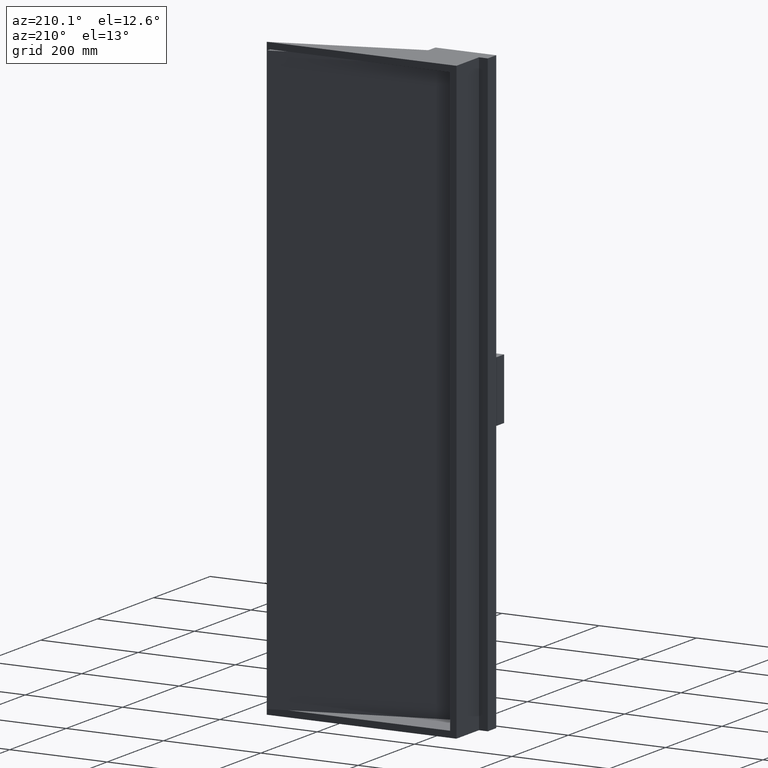
[diagram: clean part render]
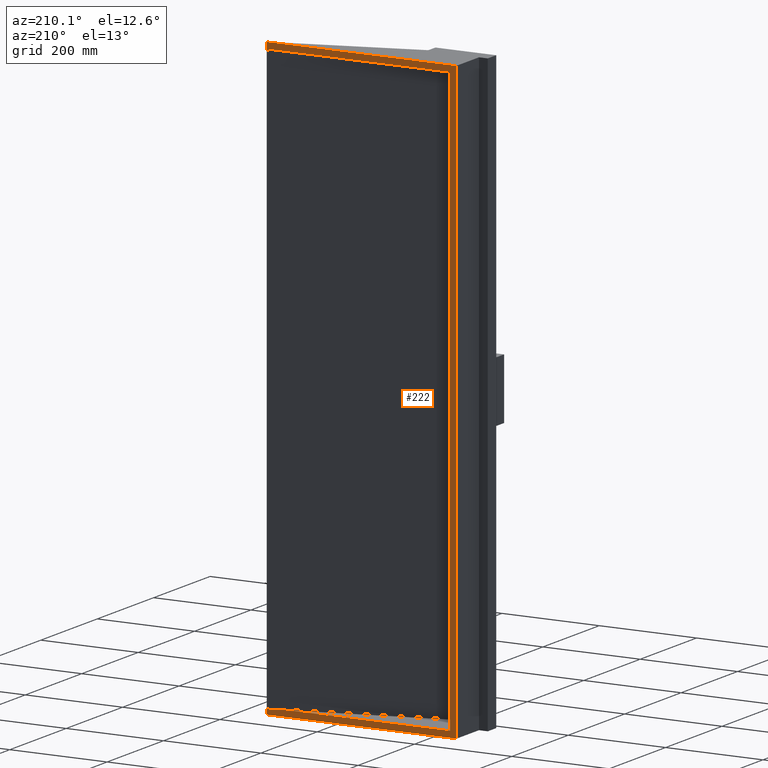
[diagram: same view with one face highlighted and labeled with its STEP entity id]
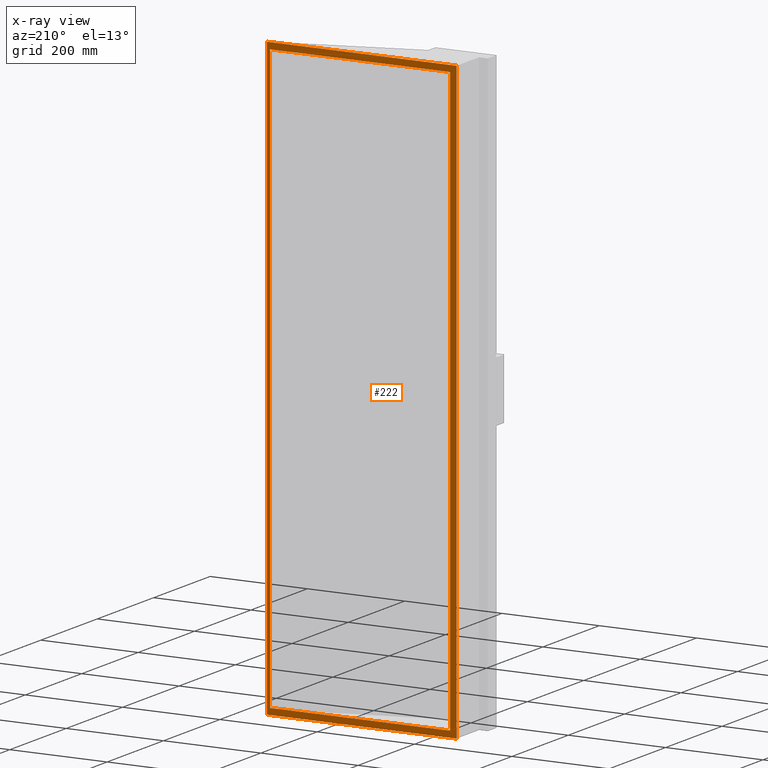
[diagram: x-ray of the same camera — body ghosted, the highlighted face saturated]
A machine part, auxiliary view. The second image highlights one B-rep face of the part: STEP entity #222.
The next image is the same camera in x-ray: the body ghosted, the highlighted face saturated — about 0% of this face is hidden behind the body in this view.
In plain terms, the highlighted planar face has unit normal (0, -1, 0).
Its self-contained STEP definition (entity closure, byte-faithful):
#20 = VERTEX_POINT ( 'NONE', #2914 ) ;
#62 = DIRECTION ( 'NONE',  ( -1.000000000000000000, -0.0000000000000000000, -0.0000000000000000000 ) ) ;
#82 = CARTESIAN_POINT ( 'NONE',  ( -73.11638246079654400, 0.0000000000000000000, 600.0000000000000000 ) ) ;
#85 = LINE ( 'NONE', #2867, #197 ) ;
#105 = EDGE_LOOP ( 'NONE', ( #2148, #2339, #1957, #2871, #2590, #1307 ) ) ;
#164 = CARTESIAN_POINT ( 'NONE',  ( -73.11638246079654400, 0.0000000000000000000, 613.0000000000000000 ) ) ;
#181 = VERTEX_POINT ( 'NONE', #1754 ) ;
#197 = VECTOR ( 'NONE', #1479, 1000.000000000000000 ) ;
#200 = VECTOR ( 'NONE', #2546, 1000.000000000000000 ) ;
#206 = LINE ( 'NONE', #2921, #200 ) ;
#222 = ADVANCED_FACE ( 'NONE', ( #2643, #2373 ), #1391, .F. ) ;
#273 = VERTEX_POINT ( 'NONE', #2050 ) ;
#365 = VECTOR ( 'NONE', #2834, 1000.000000000000000 ) ;
#368 = LINE ( 'NONE', #1060, #365 ) ;
#431 = VECTOR ( 'NONE', #944, 1000.000000000000000 ) ;
#523 = LINE ( 'NONE', #942, #431 ) ;
#572 = EDGE_CURVE ( 'NONE', #273, #2479, #854, .T. ) ;
#574 = VECTOR ( 'NONE', #62, 1000.000000000000000 ) ;
#596 = EDGE_CURVE ( 'NONE', #2620, #1710, #809, .T. ) ;
#679 = EDGE_CURVE ( 'NONE', #1793, #2620, #368, .T. ) ;
#701 = EDGE_CURVE ( 'NONE', #2573, #2006, #523, .T. ) ;
#725 = VECTOR ( 'NONE', #2037, 1000.000000000000000 ) ;
#809 = LINE ( 'NONE', #164, #725 ) ;
#849 = VECTOR ( 'NONE', #1585, 1000.000000000000000 ) ;
#854 = LINE ( 'NONE', #2569, #849 ) ;
#891 = EDGE_CURVE ( 'NONE', #20, #181, #2104, .T. ) ;
#942 = CARTESIAN_POINT ( 'NONE',  ( -86.11638246079655800, 0.0000000000000000000, 613.0000000000000000 ) ) ;
#944 = DIRECTION ( 'NONE',  ( -0.0000000000000000000, -0.0000000000000000000, -1.000000000000000000 ) ) ;
#1000 = CARTESIAN_POINT ( 'NONE',  ( -86.11638246079655800, 0.0000000000000000000, 613.0000000000000000 ) ) ;
#1021 = VECTOR ( 'NONE', #1876, 1000.000000000000000 ) ;
#1033 = CARTESIAN_POINT ( 'NONE',  ( -86.11638246079655800, 0.0000000000000000000, -613.0000000000000000 ) ) ;
#1060 = CARTESIAN_POINT ( 'NONE',  ( -86.11638246079655800, 0.0000000000000000000, 600.0000000000000000 ) ) ;
#1140 = VERTEX_POINT ( 'NONE', #2913 ) ;
#1145 = LINE ( 'NONE', #1879, #1021 ) ;
#1301 = CARTESIAN_POINT ( 'NONE',  ( -86.11638246079655800, 0.0000000000000000000, 613.0000000000000000 ) ) ;
#1307 = ORIENTED_EDGE ( 'NONE', *, *, #1728, .T. ) ;
#1365 = DIRECTION ( 'NONE',  ( 0.0000000000000000000, -1.000000000000000000, 0.0000000000000000000 ) ) ;
#1391 = PLANE ( 'NONE',  #1663 ) ;
#1470 = EDGE_CURVE ( 'NONE', #1140, #2479, #1725, .T. ) ;
#1479 = DIRECTION ( 'NONE',  ( -1.000000000000000000, -0.0000000000000000000, -0.0000000000000000000 ) ) ;
#1557 = EDGE_CURVE ( 'NONE', #181, #2006, #1145, .T. ) ;
#1585 = DIRECTION ( 'NONE',  ( -0.0000000000000000000, -0.0000000000000000000, -1.000000000000000000 ) ) ;
#1654 = VECTOR ( 'NONE', #2137, 1000.000000000000000 ) ;
#1663 = AXIS2_PLACEMENT_3D ( 'NONE', #1301, #1365, #2878 ) ;
#1710 = VERTEX_POINT ( 'NONE', #2166 ) ;
#1725 = LINE ( 'NONE', #2098, #1654 ) ;
#1728 = EDGE_CURVE ( 'NONE', #1710, #1140, #206, .T. ) ;
#1754 = CARTESIAN_POINT ( 'NONE',  ( 303.8836175392034400, 0.0000000000000000000, -613.0000000000000000 ) ) ;
#1786 = EDGE_CURVE ( 'NONE', #20, #2573, #85, .T. ) ;
#1793 = VERTEX_POINT ( 'NONE', #2842 ) ;
#1876 = DIRECTION ( 'NONE',  ( -1.000000000000000000, -0.0000000000000000000, -0.0000000000000000000 ) ) ;
#1879 = CARTESIAN_POINT ( 'NONE',  ( -86.11638246079655800, 0.0000000000000000000, -613.0000000000000000 ) ) ;
#1945 = CARTESIAN_POINT ( 'NONE',  ( -73.11638246079654400, 0.0000000000000000000, 600.0000000000000000 ) ) ;
#1957 = ORIENTED_EDGE ( 'NONE', *, *, #1984, .T. ) ;
#1965 = EDGE_LOOP ( 'NONE', ( #2270, #2410, #2191, #2519 ) ) ;
#1984 = EDGE_CURVE ( 'NONE', #273, #1793, #2221, .T. ) ;
#2006 = VERTEX_POINT ( 'NONE', #1033 ) ;
#2037 = DIRECTION ( 'NONE',  ( 0.0000000000000000000, 0.0000000000000000000, -1.000000000000000000 ) ) ;
#2050 = CARTESIAN_POINT ( 'NONE',  ( 296.8836175392034400, 0.0000000000000000000, 600.0000000000000000 ) ) ;
#2098 = CARTESIAN_POINT ( 'NONE',  ( 303.8836175392034400, 0.0000000000000000000, -600.0000000000000000 ) ) ;
#2101 = VECTOR ( 'NONE', #2788, 1000.000000000000000 ) ;
#2104 = LINE ( 'NONE', #2768, #2101 ) ;
#2137 = DIRECTION ( 'NONE',  ( 1.000000000000000000, -0.0000000000000000000, -0.0000000000000000000 ) ) ;
#2148 = ORIENTED_EDGE ( 'NONE', *, *, #1470, .T. ) ;
#2166 = CARTESIAN_POINT ( 'NONE',  ( -73.11638246079654400, 0.0000000000000000000, -600.0000000000000000 ) ) ;
#2191 = ORIENTED_EDGE ( 'NONE', *, *, #1786, .F. ) ;
#2221 = LINE ( 'NONE', #82, #574 ) ;
#2270 = ORIENTED_EDGE ( 'NONE', *, *, #1557, .T. ) ;
#2339 = ORIENTED_EDGE ( 'NONE', *, *, #572, .F. ) ;
#2373 = FACE_OUTER_BOUND ( 'NONE', #1965, .T. ) ;
#2410 = ORIENTED_EDGE ( 'NONE', *, *, #701, .F. ) ;
#2479 = VERTEX_POINT ( 'NONE', #2833 ) ;
#2519 = ORIENTED_EDGE ( 'NONE', *, *, #891, .T. ) ;
#2546 = DIRECTION ( 'NONE',  ( 1.000000000000000000, 0.0000000000000000000, 0.0000000000000000000 ) ) ;
#2569 = CARTESIAN_POINT ( 'NONE',  ( 296.8836175392034400, 0.0000000000000000000, 613.0000000000000000 ) ) ;
#2573 = VERTEX_POINT ( 'NONE', #1000 ) ;
#2590 = ORIENTED_EDGE ( 'NONE', *, *, #596, .T. ) ;
#2620 = VERTEX_POINT ( 'NONE', #1945 ) ;
#2643 = FACE_BOUND ( 'NONE', #105, .T. ) ;
#2768 = CARTESIAN_POINT ( 'NONE',  ( 303.8836175392034400, 0.0000000000000000000, 613.0000000000000000 ) ) ;
#2788 = DIRECTION ( 'NONE',  ( -0.0000000000000000000, -0.0000000000000000000, -1.000000000000000000 ) ) ;
#2833 = CARTESIAN_POINT ( 'NONE',  ( 296.8836175392034400, 0.0000000000000000000, -600.0000000000000000 ) ) ;
#2834 = DIRECTION ( 'NONE',  ( -1.000000000000000000, 0.0000000000000000000, 0.0000000000000000000 ) ) ;
#2842 = CARTESIAN_POINT ( 'NONE',  ( 260.3836175392035000, 0.0000000000000000000, 600.0000000000000000 ) ) ;
#2867 = CARTESIAN_POINT ( 'NONE',  ( 296.8836175392034400, 0.0000000000000000000, 613.0000000000000000 ) ) ;
#2871 = ORIENTED_EDGE ( 'NONE', *, *, #679, .T. ) ;
#2878 = DIRECTION ( 'NONE',  ( 0.0000000000000000000, -0.0000000000000000000, -1.000000000000000000 ) ) ;
#2913 = CARTESIAN_POINT ( 'NONE',  ( 260.3836175392035000, 0.0000000000000000000, -600.0000000000000000 ) ) ;
#2914 = CARTESIAN_POINT ( 'NONE',  ( 303.8836175392034400, 0.0000000000000000000, 613.0000000000000000 ) ) ;
#2921 = CARTESIAN_POINT ( 'NONE',  ( -86.11638246079655800, 0.0000000000000000000, -600.0000000000001100 ) ) ;